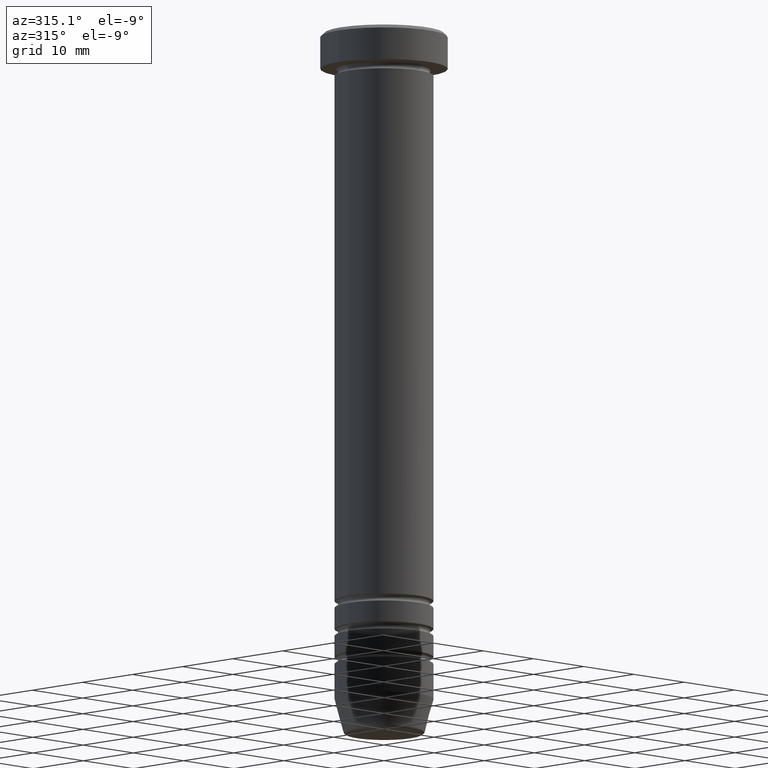
[diagram: clean part render]
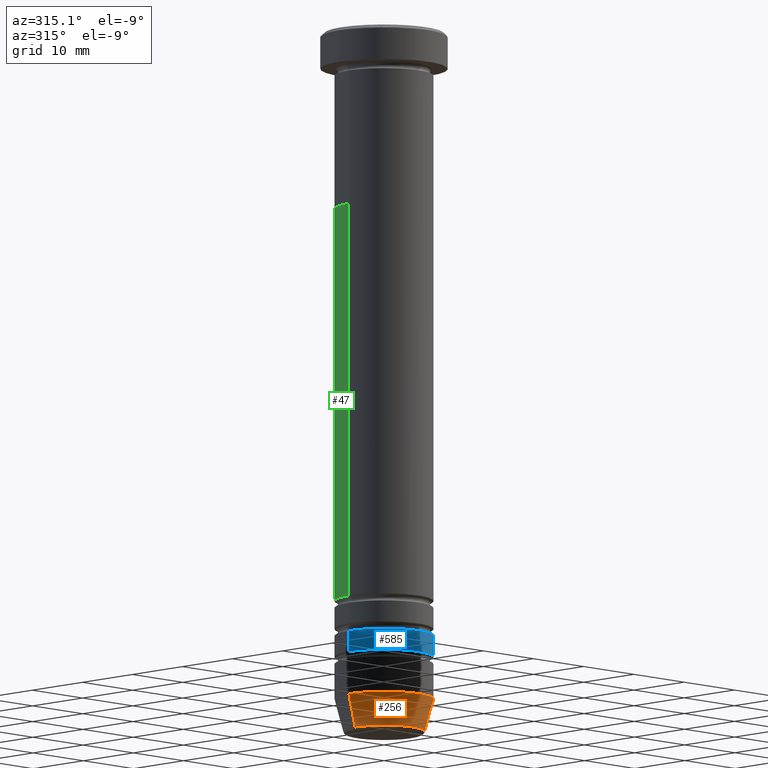
[diagram: same view with three faces highlighted in distinct colors, each labeled with its STEP entity id]
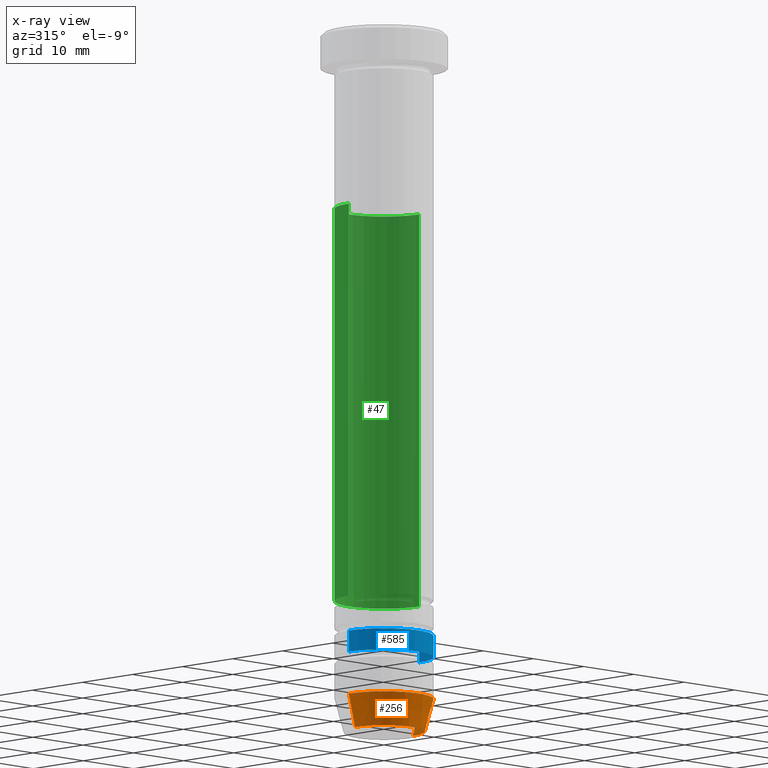
[diagram: x-ray of the same camera — body ghosted, the three highlighted faces saturated]
A machine part, auxiliary view with three faces highlighted in distinct colors.
The next image is the same camera in x-ray (body ghosted, the three faces saturated) — at least one of them is partly hidden behind the body in this view.
Their STEP definitions:

[orange] entity #256 — the highlighted conical surface has half-angle 15 deg.
#6 = CARTESIAN_POINT ( 'NONE',  ( 7.000000000000000000, 0.000000000000000000, -95.00000000000000000 ) ) ;
#18 = ORIENTED_EDGE ( 'NONE', *, *, #873, .T. ) ;
#45 = ORIENTED_EDGE ( 'NONE', *, *, #1025, .F. ) ;
#48 = CIRCLE ( 'NONE', #615, 5.759553456999440435 ) ;
#99 = CARTESIAN_POINT ( 'NONE',  ( -7.000000000000000000, 8.572527594031473190E-16, -95.00000000000000000 ) ) ;
#110 = CIRCLE ( 'NONE', #153, 7.000000000000000000 ) ;
#130 = EDGE_CURVE ( 'NONE', #754, #372, #110, .T. ) ;
#153 = AXIS2_PLACEMENT_3D ( 'NONE', #710, #543, #623 ) ;
#189 = VECTOR ( 'NONE', #1005, 1000.000000000000114 ) ;
#248 = LINE ( 'NONE', #940, #189 ) ;
#256 = ADVANCED_FACE ( 'NONE', ( #719 ), #914, .T. ) ;
#261 = DIRECTION ( 'NONE',  ( -0.000000000000000000, -0.000000000000000000, 1.000000000000000000 ) ) ;
#285 = DIRECTION ( 'NONE',  ( -1.000000000000000000, 0.000000000000000000, 0.000000000000000000 ) ) ;
#300 = DIRECTION ( 'NONE',  ( 1.000000000000000000, 0.000000000000000000, 0.000000000000000000 ) ) ;
#311 = VECTOR ( 'NONE', #514, 1000.000000000000114 ) ;
#320 = LINE ( 'NONE', #429, #311 ) ;
#331 = VERTEX_POINT ( 'NONE', #906 ) ;
#372 = VERTEX_POINT ( 'NONE', #6 ) ;
#429 = CARTESIAN_POINT ( 'NONE',  ( 5.660254037844384634, 0.000000000000000000, -99.99999999999998579 ) ) ;
#514 = DIRECTION ( 'NONE',  ( 0.2588190451025214611, 0.000000000000000000, 0.9659258262890679791 ) ) ;
#525 = CARTESIAN_POINT ( 'NONE',  ( -5.759553456999440435, 7.812973149831955717E-16, -99.62940952255124216 ) ) ;
#543 = DIRECTION ( 'NONE',  ( -0.000000000000000000, -0.000000000000000000, 1.000000000000000000 ) ) ;
#563 = CARTESIAN_POINT ( 'NONE',  ( 0.000000000000000000, 0.000000000000000000, -99.99999999999998579 ) ) ;
#567 = VERTEX_POINT ( 'NONE', #525 ) ;
#615 = AXIS2_PLACEMENT_3D ( 'NONE', #1020, #261, #285 ) ;
#623 = DIRECTION ( 'NONE',  ( 1.000000000000000000, 0.000000000000000000, 0.000000000000000000 ) ) ;
#710 = CARTESIAN_POINT ( 'NONE',  ( 0.000000000000000000, 0.000000000000000000, -95.00000000000000000 ) ) ;
#719 = FACE_OUTER_BOUND ( 'NONE', #973, .T. ) ;
#754 = VERTEX_POINT ( 'NONE', #99 ) ;
#780 = ORIENTED_EDGE ( 'NONE', *, *, #130, .F. ) ;
#796 = ORIENTED_EDGE ( 'NONE', *, *, #989, .T. ) ;
#873 = EDGE_CURVE ( 'NONE', #567, #331, #48, .T. ) ;
#906 = CARTESIAN_POINT ( 'NONE',  ( 5.759553456999440435, 0.000000000000000000, -99.62940952255124216 ) ) ;
#914 = CONICAL_SURFACE ( 'NONE', #930, 5.660254037844384634, 0.2617993877991502405 ) ;
#930 = AXIS2_PLACEMENT_3D ( 'NONE', #563, #1041, #300 ) ;
#940 = CARTESIAN_POINT ( 'NONE',  ( -5.660254037844384634, 6.931811989807007308E-16, -99.99999999999998579 ) ) ;
#973 = EDGE_LOOP ( 'NONE', ( #45, #18, #796, #780 ) ) ;
#989 = EDGE_CURVE ( 'NONE', #331, #372, #320, .T. ) ;
#1005 = DIRECTION ( 'NONE',  ( -0.2588190451025214611, 3.169619151431774186E-17, 0.9659258262890679791 ) ) ;
#1020 = CARTESIAN_POINT ( 'NONE',  ( 0.000000000000000000, 0.000000000000000000, -99.62940952255124216 ) ) ;
#1025 = EDGE_CURVE ( 'NONE', #567, #754, #248, .T. ) ;
#1041 = DIRECTION ( 'NONE',  ( -0.000000000000000000, -0.000000000000000000, 1.000000000000000000 ) ) ;

[blue] entity #585 — the highlighted cylindrical surface (partial cylindrical patch) has radius 7 mm, axis along (-0, -0, 1).
#29 = CIRCLE ( 'NONE', #61, 6.999999999999992895 ) ;
#53 = CARTESIAN_POINT ( 'NONE',  ( 6.999999999999996447, 0.000000000000000000, 0.000000000000000000 ) ) ;
#61 = AXIS2_PLACEMENT_3D ( 'NONE', #477, #68, #721 ) ;
#68 = DIRECTION ( 'NONE',  ( -0.000000000000000000, -0.000000000000000000, 1.000000000000000000 ) ) ;
#79 = DIRECTION ( 'NONE',  ( -0.000000000000000000, -0.000000000000000000, 1.000000000000000000 ) ) ;
#87 = DIRECTION ( 'NONE',  ( 1.000000000000000000, 0.000000000000000000, 0.000000000000000000 ) ) ;
#90 = EDGE_LOOP ( 'NONE', ( #336, #564, #529, #319 ) ) ;
#164 = CARTESIAN_POINT ( 'NONE',  ( 6.999999999999992895, 0.000000000000000000, -89.00000000000000000 ) ) ;
#176 = EDGE_CURVE ( 'NONE', #707, #769, #227, .T. ) ;
#198 = LINE ( 'NONE', #53, #332 ) ;
#227 = LINE ( 'NONE', #888, #324 ) ;
#247 = CARTESIAN_POINT ( 'NONE',  ( 7.000000000000000000, 0.000000000000000000, -86.00000000000000000 ) ) ;
#258 = CARTESIAN_POINT ( 'NONE',  ( 0.000000000000000000, 0.000000000000000000, -86.00000000000000000 ) ) ;
#291 = EDGE_CURVE ( 'NONE', #707, #977, #29, .T. ) ;
#319 = ORIENTED_EDGE ( 'NONE', *, *, #723, .F. ) ;
#324 = VECTOR ( 'NONE', #79, 1000.000000000000000 ) ;
#332 = VECTOR ( 'NONE', #531, 1000.000000000000000 ) ;
#336 = ORIENTED_EDGE ( 'NONE', *, *, #176, .F. ) ;
#449 = FACE_OUTER_BOUND ( 'NONE', #90, .T. ) ;
#477 = CARTESIAN_POINT ( 'NONE',  ( 0.000000000000000000, 0.000000000000000000, -89.00000000000000000 ) ) ;
#529 = ORIENTED_EDGE ( 'NONE', *, *, #883, .T. ) ;
#531 = DIRECTION ( 'NONE',  ( -0.000000000000000000, -0.000000000000000000, 1.000000000000000000 ) ) ;
#536 = CARTESIAN_POINT ( 'NONE',  ( 0.000000000000000000, 0.000000000000000000, 0.000000000000000000 ) ) ;
#564 = ORIENTED_EDGE ( 'NONE', *, *, #291, .T. ) ;
#585 = ADVANCED_FACE ( 'NONE', ( #449 ), #778, .T. ) ;
#616 = DIRECTION ( 'NONE',  ( 1.000000000000000000, 0.000000000000000000, 0.000000000000000000 ) ) ;
#633 = CIRCLE ( 'NONE', #838, 7.000000000000000000 ) ;
#707 = VERTEX_POINT ( 'NONE', #900 ) ;
#721 = DIRECTION ( 'NONE',  ( 1.000000000000000000, 0.000000000000000000, 0.000000000000000000 ) ) ;
#723 = EDGE_CURVE ( 'NONE', #769, #1004, #633, .T. ) ;
#769 = VERTEX_POINT ( 'NONE', #908 ) ;
#778 = CYLINDRICAL_SURFACE ( 'NONE', #1034, 6.999999999999996447 ) ;
#784 = DIRECTION ( 'NONE',  ( -0.000000000000000000, -0.000000000000000000, 1.000000000000000000 ) ) ;
#827 = DIRECTION ( 'NONE',  ( -0.000000000000000000, -0.000000000000000000, 1.000000000000000000 ) ) ;
#838 = AXIS2_PLACEMENT_3D ( 'NONE', #258, #827, #87 ) ;
#883 = EDGE_CURVE ( 'NONE', #977, #1004, #198, .T. ) ;
#888 = CARTESIAN_POINT ( 'NONE',  ( -6.999999999999996447, 8.572527594031468259E-16, 0.000000000000000000 ) ) ;
#900 = CARTESIAN_POINT ( 'NONE',  ( -6.999999999999992895, 8.572527594031466287E-16, -89.00000000000000000 ) ) ;
#908 = CARTESIAN_POINT ( 'NONE',  ( -7.000000000000000000, 8.572527594031472204E-16, -86.00000000000000000 ) ) ;
#977 = VERTEX_POINT ( 'NONE', #164 ) ;
#1004 = VERTEX_POINT ( 'NONE', #247 ) ;
#1034 = AXIS2_PLACEMENT_3D ( 'NONE', #536, #784, #616 ) ;

[green] entity #47 — the highlighted cylindrical surface (partial cylindrical patch) has radius 7 mm, axis along (-0, -0, 1).
#17 = VERTEX_POINT ( 'NONE', #664 ) ;
#20 = CARTESIAN_POINT ( 'NONE',  ( 0.000000000000000000, 0.000000000000000000, -81.00000000000000000 ) ) ;
#23 = LINE ( 'NONE', #921, #251 ) ;
#47 = ADVANCED_FACE ( 'NONE', ( #969 ), #224, .T. ) ;
#52 = VERTEX_POINT ( 'NONE', #658 ) ;
#86 = EDGE_CURVE ( 'NONE', #410, #52, #287, .T. ) ;
#95 = EDGE_LOOP ( 'NONE', ( #271, #872, #162, #392 ) ) ;
#128 = AXIS2_PLACEMENT_3D ( 'NONE', #20, #327, #986 ) ;
#146 = CARTESIAN_POINT ( 'NONE',  ( 0.000000000000000000, 0.000000000000000000, 0.000000000000000000 ) ) ;
#162 = ORIENTED_EDGE ( 'NONE', *, *, #1044, .F. ) ;
#181 = DIRECTION ( 'NONE',  ( 1.000000000000000000, 0.000000000000000000, 0.000000000000000000 ) ) ;
#186 = AXIS2_PLACEMENT_3D ( 'NONE', #146, #820, #484 ) ;
#195 = DIRECTION ( 'NONE',  ( -0.000000000000000000, -0.000000000000000000, 1.000000000000000000 ) ) ;
#224 = CYLINDRICAL_SURFACE ( 'NONE', #186, 6.999999999999996447 ) ;
#250 = CARTESIAN_POINT ( 'NONE',  ( -6.999999999999992895, 8.572527594031466287E-16, -81.00000000000000000 ) ) ;
#251 = VECTOR ( 'NONE', #381, 1000.000000000000000 ) ;
#269 = VECTOR ( 'NONE', #278, 1000.000000000000000 ) ;
#271 = ORIENTED_EDGE ( 'NONE', *, *, #760, .T. ) ;
#278 = DIRECTION ( 'NONE',  ( -0.000000000000000000, -0.000000000000000000, 1.000000000000000000 ) ) ;
#287 = LINE ( 'NONE', #470, #269 ) ;
#327 = DIRECTION ( 'NONE',  ( -0.000000000000000000, -0.000000000000000000, 1.000000000000000000 ) ) ;
#371 = CARTESIAN_POINT ( 'NONE',  ( 6.999999999999992895, 0.000000000000000000, -81.00000000000000000 ) ) ;
#381 = DIRECTION ( 'NONE',  ( -0.000000000000000000, -0.000000000000000000, 1.000000000000000000 ) ) ;
#392 = ORIENTED_EDGE ( 'NONE', *, *, #434, .F. ) ;
#410 = VERTEX_POINT ( 'NONE', #250 ) ;
#434 = EDGE_CURVE ( 'NONE', #455, #17, #23, .T. ) ;
#455 = VERTEX_POINT ( 'NONE', #371 ) ;
#458 = CIRCLE ( 'NONE', #953, 7.000000000000000000 ) ;
#470 = CARTESIAN_POINT ( 'NONE',  ( -6.999999999999996447, 8.572527594031468259E-16, 0.000000000000000000 ) ) ;
#484 = DIRECTION ( 'NONE',  ( 1.000000000000000000, 0.000000000000000000, 0.000000000000000000 ) ) ;
#595 = CARTESIAN_POINT ( 'NONE',  ( 0.000000000000000000, 0.000000000000000000, -25.00000000000000000 ) ) ;
#658 = CARTESIAN_POINT ( 'NONE',  ( -7.000000000000000000, 8.572527594031472204E-16, -25.00000000000000000 ) ) ;
#664 = CARTESIAN_POINT ( 'NONE',  ( 7.000000000000000000, 0.000000000000000000, -25.00000000000000000 ) ) ;
#714 = CIRCLE ( 'NONE', #128, 6.999999999999992895 ) ;
#760 = EDGE_CURVE ( 'NONE', #455, #410, #714, .T. ) ;
#820 = DIRECTION ( 'NONE',  ( -0.000000000000000000, -0.000000000000000000, 1.000000000000000000 ) ) ;
#872 = ORIENTED_EDGE ( 'NONE', *, *, #86, .T. ) ;
#921 = CARTESIAN_POINT ( 'NONE',  ( 6.999999999999996447, 0.000000000000000000, 0.000000000000000000 ) ) ;
#953 = AXIS2_PLACEMENT_3D ( 'NONE', #595, #195, #181 ) ;
#969 = FACE_OUTER_BOUND ( 'NONE', #95, .T. ) ;
#986 = DIRECTION ( 'NONE',  ( 1.000000000000000000, 0.000000000000000000, 0.000000000000000000 ) ) ;
#1044 = EDGE_CURVE ( 'NONE', #17, #52, #458, .T. ) ;